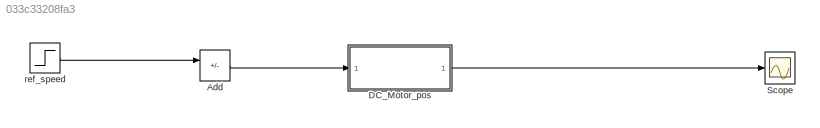
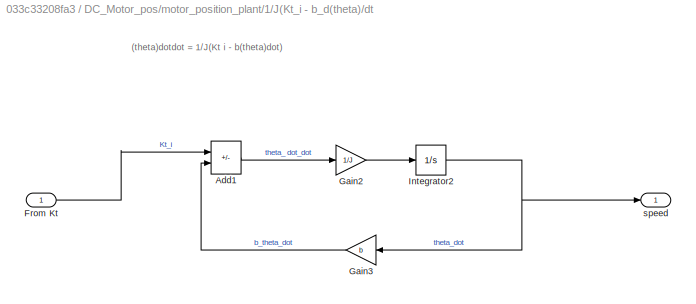
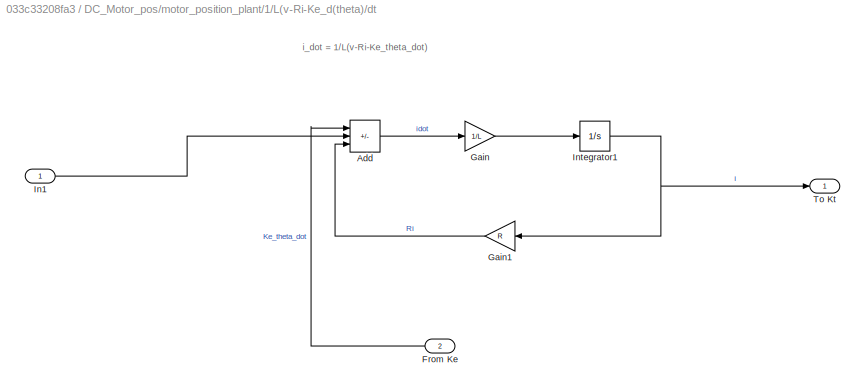
MODEL slx_033c33208fa3
KIND model
CONFIG AbsTol = auto
CONFIG EnableMultiTasking = off
CONFIG FixedStep = auto
CONFIG MaxStep = auto
CONFIG MinStep = auto
CONFIG RelTol = 1e-3
CONFIG SampleTimeConstraint = Unconstrained
CONFIG Solver = VariableStepAuto
CONFIG SolverName = VariableStepAuto
CONFIG StartTime = 0.0
CONFIG StopTime = 10.0
BLOCK [Sum] Add
  IconShape = rectangular
  Inputs = +-
  Ports = [2, 1]
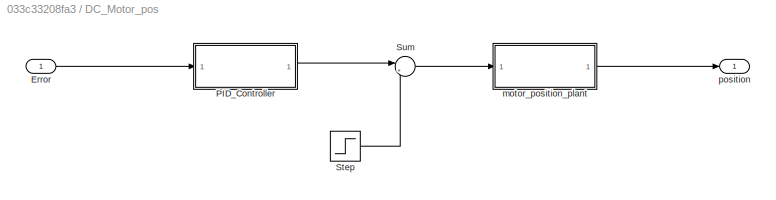
BLOCK [SubSystem] DC_Motor_pos
  Ports = [1, 1]
  RequestExecContextInheritance = off
  TreatAsAtomicUnit = on
BLOCK [Inport] DC_Motor_pos/Error
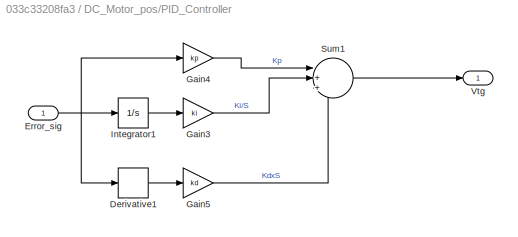
BLOCK [SubSystem] DC_Motor_pos/PID_Controller
  Ports = [1, 1]
  RequestExecContextInheritance = off
  TreatAsAtomicUnit = on
BLOCK [Derivative] DC_Motor_pos/PID_Controller/Derivative1
BLOCK [Inport] DC_Motor_pos/PID_Controller/Error_sig
BLOCK [Gain] DC_Motor_pos/PID_Controller/Gain3
  Gain = ki
BLOCK [Gain] DC_Motor_pos/PID_Controller/Gain4
  Gain = kp
BLOCK [Gain] DC_Motor_pos/PID_Controller/Gain5
  Gain = kd
BLOCK [Integrator] DC_Motor_pos/PID_Controller/Integrator1
  Ports = [1, 1]
BLOCK [Sum] DC_Motor_pos/PID_Controller/Sum1
  Inputs = |+++
  NameLocation = top
  Ports = [3, 1]
BLOCK [Outport] DC_Motor_pos/PID_Controller/Vtg
BLOCK [Step] DC_Motor_pos/Step
  Before = 0.03
  SampleTime = 0
  Time = 0
BLOCK [Sum] DC_Motor_pos/Sum
  Inputs = |++
  Ports = [2, 1]
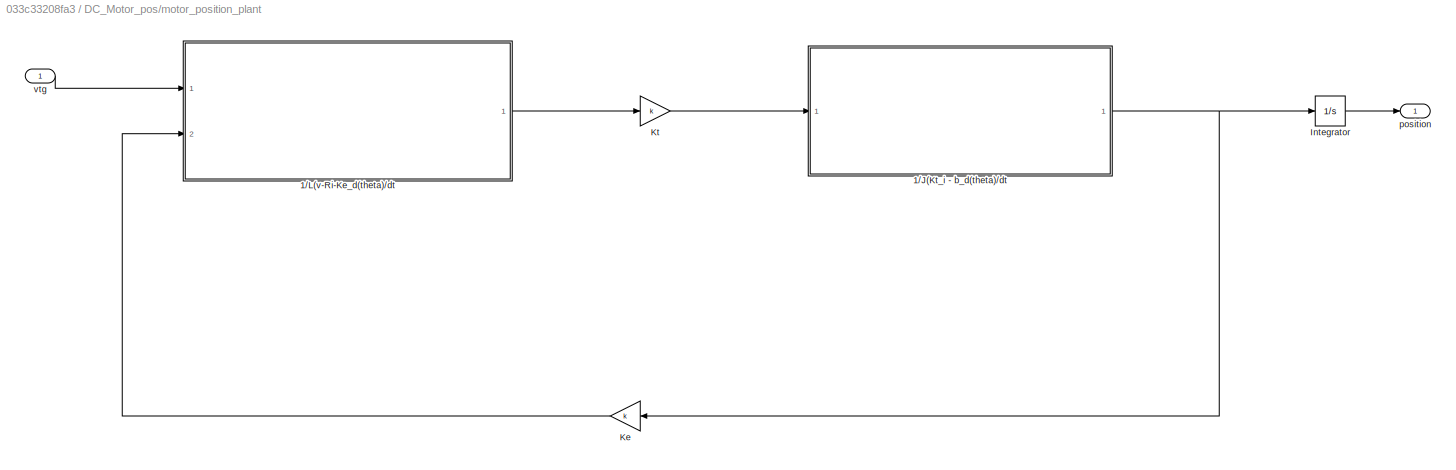
BLOCK [SubSystem] DC_Motor_pos/motor_position_plant
  Ports = [1, 1]
  RequestExecContextInheritance = off
  TreatAsAtomicUnit = on
BLOCK [SubSystem] DC_Motor_pos/motor_position_plant/1//J(Kt_i - b_d(theta)//dt
  Ports = [1, 1]
  RequestExecContextInheritance = off
BLOCK [Sum] DC_Motor_pos/motor_position_plant/1//J(Kt_i - b_d(theta)//dt/Add1
  IconShape = rectangular
  Inputs = +-
  Ports = [2, 1]
BLOCK [Inport] DC_Motor_pos/motor_position_plant/1//J(Kt_i - b_d(theta)//dt/From Kt
BLOCK [Gain] DC_Motor_pos/motor_position_plant/1//J(Kt_i - b_d(theta)//dt/Gain2
  Gain = 1/J
BLOCK [Gain] DC_Motor_pos/motor_position_plant/1//J(Kt_i - b_d(theta)//dt/Gain3
  Gain = b
  NameLocation = top
BLOCK [Integrator] DC_Motor_pos/motor_position_plant/1//J(Kt_i - b_d(theta)//dt/Integrator2
  Ports = [1, 1]
BLOCK [Outport] DC_Motor_pos/motor_position_plant/1//J(Kt_i - b_d(theta)//dt/speed
BLOCK [SubSystem] DC_Motor_pos/motor_position_plant/1//L(v-Ri-Ke_d(theta)//dt
  Ports = [2, 1]
  RequestExecContextInheritance = off
BLOCK [Sum] DC_Motor_pos/motor_position_plant/1//L(v-Ri-Ke_d(theta)//dt/Add
  IconShape = rectangular
  Inputs = -+-
  Ports = [3, 1]
BLOCK [Inport] DC_Motor_pos/motor_position_plant/1//L(v-Ri-Ke_d(theta)//dt/From Ke
  Port = 2
BLOCK [Gain] DC_Motor_pos/motor_position_plant/1//L(v-Ri-Ke_d(theta)//dt/Gain
  Gain = 1/L
BLOCK [Gain] DC_Motor_pos/motor_position_plant/1//L(v-Ri-Ke_d(theta)//dt/Gain1
  Gain = R
  NameLocation = top
BLOCK [Inport] DC_Motor_pos/motor_position_plant/1//L(v-Ri-Ke_d(theta)//dt/In1
BLOCK [Integrator] DC_Motor_pos/motor_position_plant/1//L(v-Ri-Ke_d(theta)//dt/Integrator1
  Ports = [1, 1]
BLOCK [Outport] DC_Motor_pos/motor_position_plant/1//L(v-Ri-Ke_d(theta)//dt/To Kt
BLOCK [Integrator] DC_Motor_pos/motor_position_plant/Integrator
  Ports = [1, 1]
BLOCK [Gain] DC_Motor_pos/motor_position_plant/Ke
  Gain = k
  NameLocation = top
BLOCK [Gain] DC_Motor_pos/motor_position_plant/Kt
  Gain = k
BLOCK [Outport] DC_Motor_pos/motor_position_plant/position
BLOCK [Inport] DC_Motor_pos/motor_position_plant/vtg
BLOCK [Outport] DC_Motor_pos/position
BLOCK [Scope] Scope
  Floating = off
  NumInputPorts = 1
  Ports = [1]
  ScopeSpecificationString = Simulink.scopes.TimeScopeBlockCfg('CurrentConfiguration', extmgr.ConfigurationSet(extmgr.Configuration('Core','General UI',true),extmgr.Configuration('Core','Source UI',true),extmgr.Configuration('Sources','WiredSimulink',true),extmgr.Configuration('Visuals','Time Domain',true,'SerializedDisplays',{struct('MinYLimReal','-0.14443','MaxYLimReal','1.2999','YLabelReal','','MinYLimMag','0.00000','MaxYL...<+1341ch>
BLOCK [Step] ref_speed
  SampleTime = 0
  Time = 0
ANNOTATION DC_Motor_pos/motor_position_plant/1//J(Kt_i - b_d(theta)//dt: (theta)dotdot = 1/J(Kt i - b(theta)dot)
ANNOTATION DC_Motor_pos/motor_position_plant/1//L(v-Ri-Ke_d(theta)//dt: i_dot = 1/L(v-Ri-Ke_theta_dot)
LINE Add:1 -> DC_Motor_pos:1
LINE DC_Motor_pos/Error:1 -> DC_Motor_pos/PID_Controller:1
LINE DC_Motor_pos/PID_Controller/Derivative1:1 -> DC_Motor_pos/PID_Controller/Gain5:1
NET DC_Motor_pos/PID_Controller/Error_sig:1 -> DC_Motor_pos/PID_Controller/Derivative1:1, DC_Motor_pos/PID_Controller/Gain4:1, DC_Motor_pos/PID_Controller/Integrator1:1
LINE DC_Motor_pos/PID_Controller/Gain3:1 -> DC_Motor_pos/PID_Controller/Sum1:2
LINE DC_Motor_pos/PID_Controller/Gain4:1 -> DC_Motor_pos/PID_Controller/Sum1:1
LINE DC_Motor_pos/PID_Controller/Gain5:1 -> DC_Motor_pos/PID_Controller/Sum1:3
LINE DC_Motor_pos/PID_Controller/Integrator1:1 -> DC_Motor_pos/PID_Controller/Gain3:1
LINE DC_Motor_pos/PID_Controller/Sum1:1 -> DC_Motor_pos/PID_Controller/Vtg:1
LINE DC_Motor_pos/PID_Controller:1 -> DC_Motor_pos/Sum:1
LINE DC_Motor_pos/Step:1 -> DC_Motor_pos/Sum:2
LINE DC_Motor_pos/Sum:1 -> DC_Motor_pos/motor_position_plant:1
LINE DC_Motor_pos/motor_position_plant/1//J(Kt_i - b_d(theta)//dt/Add1:1 -> DC_Motor_pos/motor_position_plant/1//J(Kt_i - b_d(theta)//dt/Gain2:1
LINE DC_Motor_pos/motor_position_plant/1//J(Kt_i - b_d(theta)//dt/From Kt:1 -> DC_Motor_pos/motor_position_plant/1//J(Kt_i - b_d(theta)//dt/Add1:1
LINE DC_Motor_pos/motor_position_plant/1//J(Kt_i - b_d(theta)//dt/Gain2:1 -> DC_Motor_pos/motor_position_plant/1//J(Kt_i - b_d(theta)//dt/Integrator2:1
LINE DC_Motor_pos/motor_position_plant/1//J(Kt_i - b_d(theta)//dt/Gain3:1 -> DC_Motor_pos/motor_position_plant/1//J(Kt_i - b_d(theta)//dt/Add1:2
NET DC_Motor_pos/motor_position_plant/1//J(Kt_i - b_d(theta)//dt/Integrator2:1 -> DC_Motor_pos/motor_position_plant/1//J(Kt_i - b_d(theta)//dt/Gain3:1, DC_Motor_pos/motor_position_plant/1//J(Kt_i - b_d(theta)//dt/speed:1
NET DC_Motor_pos/motor_position_plant/1//J(Kt_i - b_d(theta)//dt:1 -> DC_Motor_pos/motor_position_plant/Integrator:1, DC_Motor_pos/motor_position_plant/Ke:1
LINE DC_Motor_pos/motor_position_plant/1//L(v-Ri-Ke_d(theta)//dt/Add:1 -> DC_Motor_pos/motor_position_plant/1//L(v-Ri-Ke_d(theta)//dt/Gain:1
LINE DC_Motor_pos/motor_position_plant/1//L(v-Ri-Ke_d(theta)//dt/From Ke:1 -> DC_Motor_pos/motor_position_plant/1//L(v-Ri-Ke_d(theta)//dt/Add:1
LINE DC_Motor_pos/motor_position_plant/1//L(v-Ri-Ke_d(theta)//dt/Gain1:1 -> DC_Motor_pos/motor_position_plant/1//L(v-Ri-Ke_d(theta)//dt/Add:3
LINE DC_Motor_pos/motor_position_plant/1//L(v-Ri-Ke_d(theta)//dt/Gain:1 -> DC_Motor_pos/motor_position_plant/1//L(v-Ri-Ke_d(theta)//dt/Integrator1:1
LINE DC_Motor_pos/motor_position_plant/1//L(v-Ri-Ke_d(theta)//dt/In1:1 -> DC_Motor_pos/motor_position_plant/1//L(v-Ri-Ke_d(theta)//dt/Add:2
NET DC_Motor_pos/motor_position_plant/1//L(v-Ri-Ke_d(theta)//dt/Integrator1:1 -> DC_Motor_pos/motor_position_plant/1//L(v-Ri-Ke_d(theta)//dt/Gain1:1, DC_Motor_pos/motor_position_plant/1//L(v-Ri-Ke_d(theta)//dt/To Kt:1
LINE DC_Motor_pos/motor_position_plant/1//L(v-Ri-Ke_d(theta)//dt:1 -> DC_Motor_pos/motor_position_plant/Kt:1
LINE DC_Motor_pos/motor_position_plant/Integrator:1 -> DC_Motor_pos/motor_position_plant/position:1
LINE DC_Motor_pos/motor_position_plant/Ke:1 -> DC_Motor_pos/motor_position_plant/1//L(v-Ri-Ke_d(theta)//dt:2
LINE DC_Motor_pos/motor_position_plant/Kt:1 -> DC_Motor_pos/motor_position_plant/1//J(Kt_i - b_d(theta)//dt:1
LINE DC_Motor_pos/motor_position_plant/vtg:1 -> DC_Motor_pos/motor_position_plant/1//L(v-Ri-Ke_d(theta)//dt:1
LINE DC_Motor_pos/motor_position_plant:1 -> DC_Motor_pos/position:1
LINE DC_Motor_pos:1 -> Scope:1
LINE ref_speed:1 -> Add:1
note: NET lines group one-source signal fan-out (src -> all destinations, sorted); 1:1 wires keep LINE
